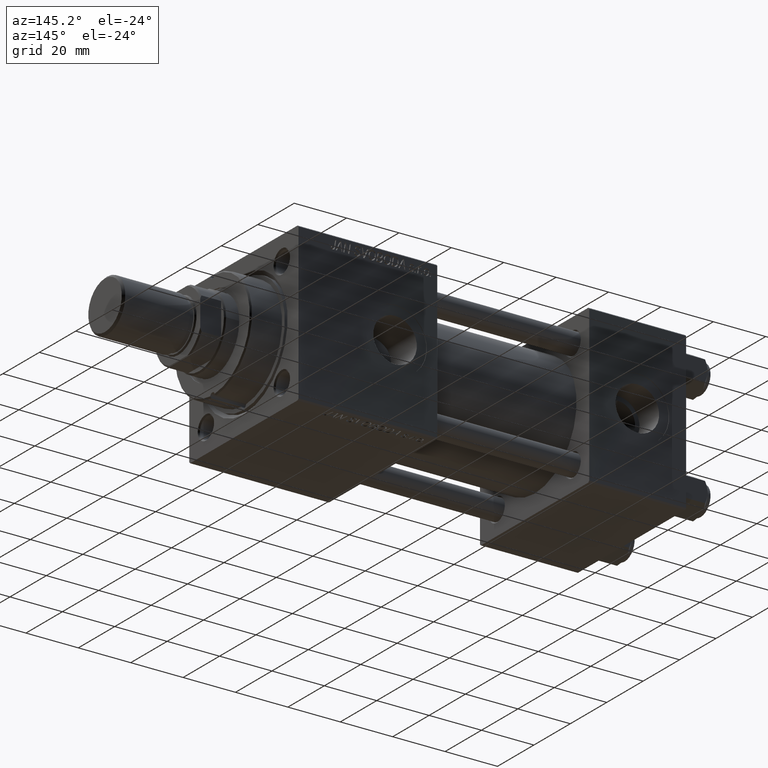
[diagram: clean part render]
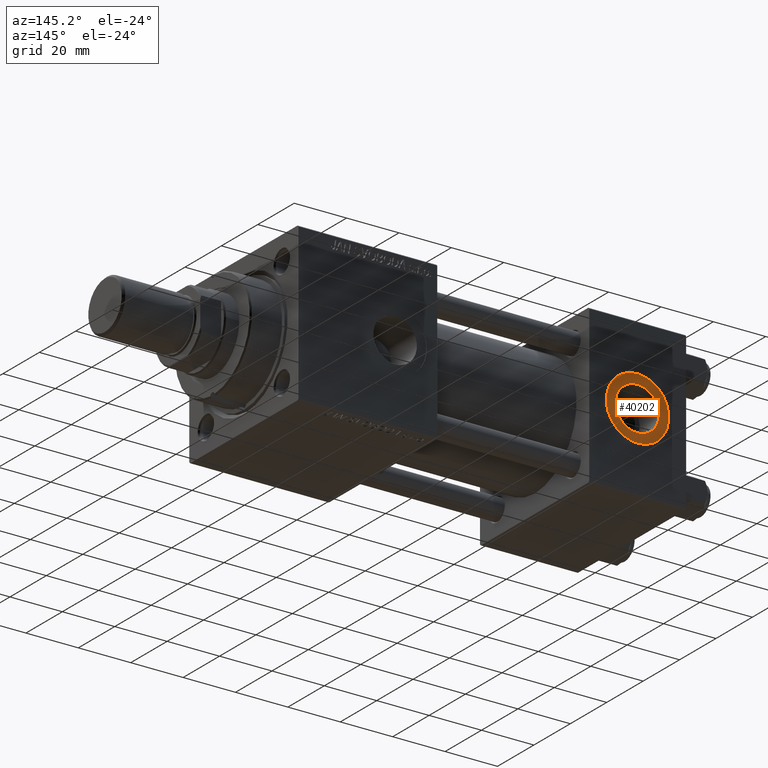
[diagram: same view with one face highlighted and labeled with its STEP entity id]
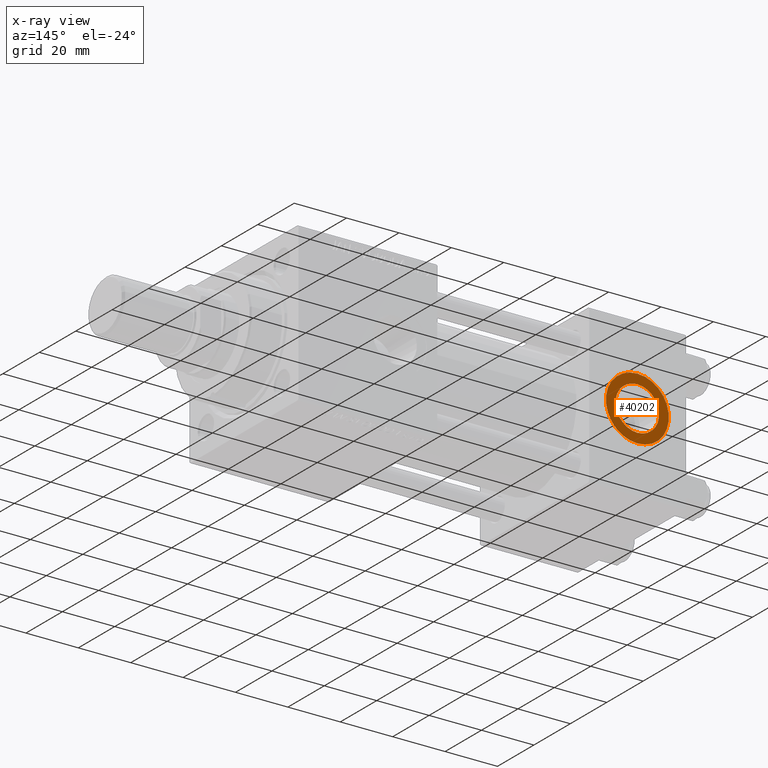
[diagram: x-ray of the same camera — body ghosted, the highlighted face saturated]
A machine part, auxiliary view. The second image highlights one B-rep face of the part: STEP entity #40202.
The next image is the same camera in x-ray: the body ghosted, the highlighted face saturated — about 0% of this face is hidden behind the body in this view.
In plain terms, the highlighted planar face has unit normal (0, 1, 0).
Its self-contained STEP definition (entity closure, byte-faithful):
#1997 = DIRECTION ( 'NONE',  ( 0.000000000000000000, 1.000000000000000000, 0.000000000000000000 ) ) ;
#2821 = DIRECTION ( 'NONE',  ( 0.000000000000000000, 0.000000000000000000, 1.000000000000000000 ) ) ;
#3034 = PLANE ( 'NONE',  #6079 ) ;
#3152 = CARTESIAN_POINT ( 'NONE',  ( 18.50000000000000000, 29.79999999999999361, -8.330000000000001847 ) ) ;
#6079 = AXIS2_PLACEMENT_3D ( 'NONE', #14615, #41904, #45263 ) ;
#6694 = EDGE_CURVE ( 'NONE', #39401, #22618, #40190, .T. ) ;
#9085 = EDGE_LOOP ( 'NONE', ( #21859, #13553 ) ) ;
#9214 = CARTESIAN_POINT ( 'NONE',  ( 18.50000000000000000, 29.79999999999999361, 0.000000000000000000 ) ) ;
#10680 = AXIS2_PLACEMENT_3D ( 'NONE', #50448, #18761, #42693 ) ;
#11364 = EDGE_CURVE ( 'NONE', #34234, #20704, #40369, .T. ) ;
#11366 = DIRECTION ( 'NONE',  ( 0.000000000000000000, 0.000000000000000000, 1.000000000000000000 ) ) ;
#13553 = ORIENTED_EDGE ( 'NONE', *, *, #26459, .F. ) ;
#14615 = CARTESIAN_POINT ( 'NONE',  ( 18.50000000000000000, 29.79999999999999361, 0.000000000000000000 ) ) ;
#17970 = AXIS2_PLACEMENT_3D ( 'NONE', #29596, #18752, #2821 ) ;
#18752 = DIRECTION ( 'NONE',  ( 0.000000000000000000, 1.000000000000000000, 0.000000000000000000 ) ) ;
#18761 = DIRECTION ( 'NONE',  ( 0.000000000000000000, 1.000000000000000000, 0.000000000000000000 ) ) ;
#20704 = VERTEX_POINT ( 'NONE', #47246 ) ;
#21496 = CARTESIAN_POINT ( 'NONE',  ( 18.50000000000000000, 29.79999999999999361, -12.00000000000000178 ) ) ;
#21859 = ORIENTED_EDGE ( 'NONE', *, *, #6694, .F. ) ;
#22618 = VERTEX_POINT ( 'NONE', #3152 ) ;
#22718 = DIRECTION ( 'NONE',  ( 0.000000000000000000, 1.000000000000000000, 0.000000000000000000 ) ) ;
#26459 = EDGE_CURVE ( 'NONE', #22618, #39401, #31980, .T. ) ;
#26645 = CARTESIAN_POINT ( 'NONE',  ( 18.50000000000000000, 29.79999999999999361, 8.330000000000001847 ) ) ;
#28737 = EDGE_CURVE ( 'NONE', #20704, #34234, #47666, .T. ) ;
#29596 = CARTESIAN_POINT ( 'NONE',  ( 18.50000000000000000, 29.79999999999999361, 0.000000000000000000 ) ) ;
#30197 = ORIENTED_EDGE ( 'NONE', *, *, #28737, .T. ) ;
#31980 = CIRCLE ( 'NONE', #10680, 8.330000000000001847 ) ;
#33687 = FACE_OUTER_BOUND ( 'NONE', #41183, .T. ) ;
#34234 = VERTEX_POINT ( 'NONE', #21496 ) ;
#34318 = ORIENTED_EDGE ( 'NONE', *, *, #11364, .T. ) ;
#36968 = AXIS2_PLACEMENT_3D ( 'NONE', #9214, #1997, #40618 ) ;
#39401 = VERTEX_POINT ( 'NONE', #26645 ) ;
#40190 = CIRCLE ( 'NONE', #17970, 8.330000000000001847 ) ;
#40202 = ADVANCED_FACE ( 'NONE', ( #42406, #33687 ), #3034, .T. ) ;
#40369 = CIRCLE ( 'NONE', #46939, 12.00000000000000178 ) ;
#40618 = DIRECTION ( 'NONE',  ( 0.000000000000000000, 0.000000000000000000, 1.000000000000000000 ) ) ;
#41183 = EDGE_LOOP ( 'NONE', ( #30197, #34318 ) ) ;
#41904 = DIRECTION ( 'NONE',  ( 0.000000000000000000, 1.000000000000000000, 0.000000000000000000 ) ) ;
#42274 = CARTESIAN_POINT ( 'NONE',  ( 18.50000000000000000, 29.79999999999999361, 0.000000000000000000 ) ) ;
#42406 = FACE_BOUND ( 'NONE', #9085, .T. ) ;
#42693 = DIRECTION ( 'NONE',  ( 0.000000000000000000, 0.000000000000000000, 1.000000000000000000 ) ) ;
#45263 = DIRECTION ( 'NONE',  ( 0.000000000000000000, -0.000000000000000000, 1.000000000000000000 ) ) ;
#46939 = AXIS2_PLACEMENT_3D ( 'NONE', #42274, #22718, #11366 ) ;
#47246 = CARTESIAN_POINT ( 'NONE',  ( 18.50000000000000000, 29.79999999999999361, 12.00000000000000178 ) ) ;
#47666 = CIRCLE ( 'NONE', #36968, 12.00000000000000178 ) ;
#50448 = CARTESIAN_POINT ( 'NONE',  ( 18.50000000000000000, 29.79999999999999361, 0.000000000000000000 ) ) ;